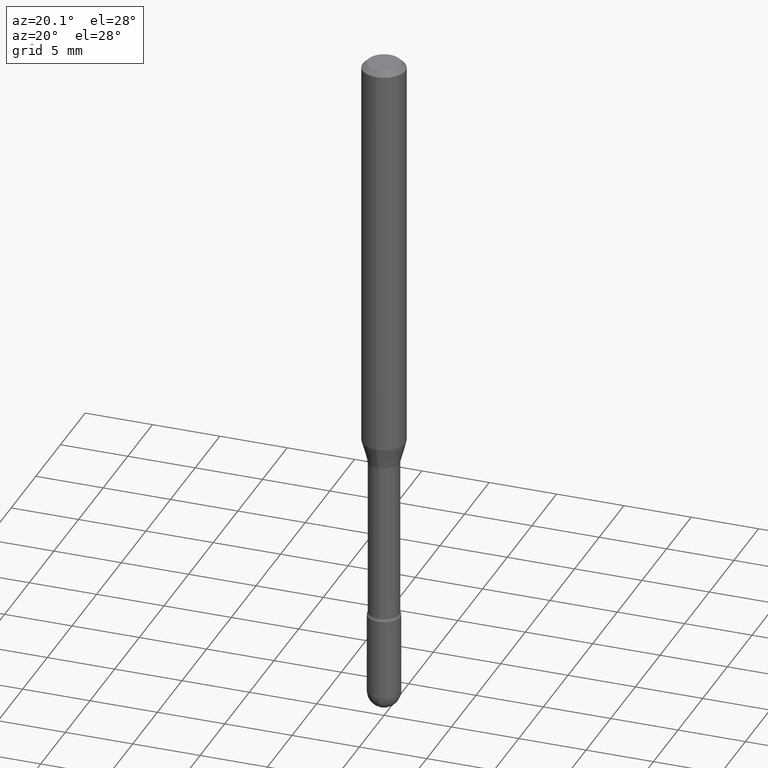
[diagram: clean part render]
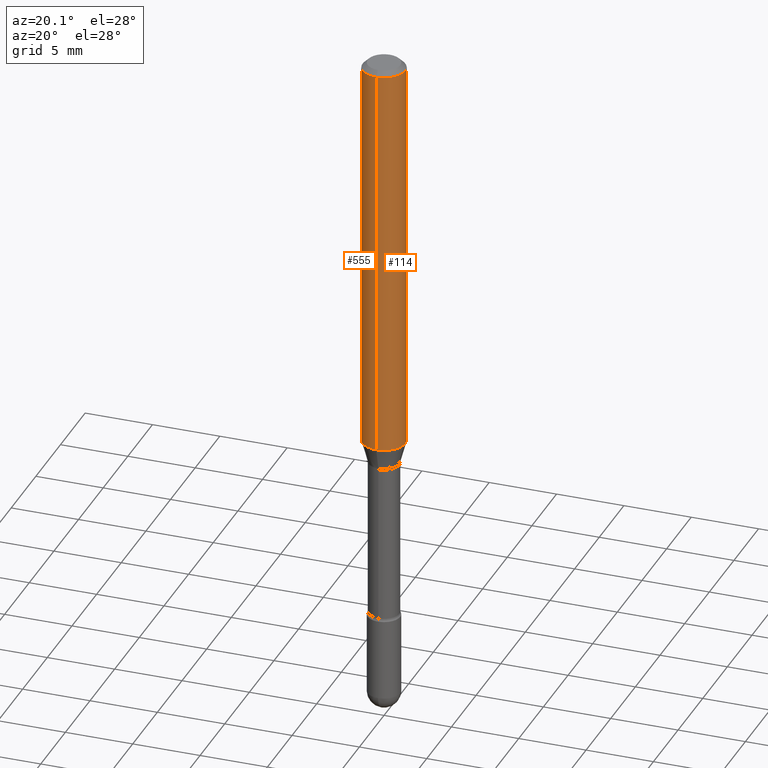
[diagram: same view with one multi-face feature highlighted, each face labeled with its STEP entity id]
A machine part, auxiliary view. The highlighted faces form ONE feature: a constant-radius fillet chain: 2 tangent blend faces with common blend radius 1.5875 mm. The faces share edges in the B-rep.
Their STEP definitions:
[1] entity #114 (Cylinder):
#11 = ORIENTED_EDGE ( 'NONE', *, *, #89, .T. ) ;
#34 = AXIS2_PLACEMENT_3D ( 'NONE', #227, #179, #230 ) ;
#44 = ORIENTED_EDGE ( 'NONE', *, *, #467, .F. ) ;
#45 = CARTESIAN_POINT ( 'NONE',  ( 4.440892098500914096E-16, 0.06249999999999593381, -1.173382893084895962 ) ) ;
#58 = CIRCLE ( 'NONE', #193, 0.06250000000000000000 ) ;
#89 = EDGE_CURVE ( 'NONE', #466, #413, #186, .T. ) ;
#114 = ADVANCED_FACE ( 'NONE', ( #124 ), #335, .T. ) ;
#115 = VECTOR ( 'NONE', #431, 39.37007874015748143 ) ;
#124 = FACE_OUTER_BOUND ( 'NONE', #295, .T. ) ;
#141 = DIRECTION ( 'NONE',  ( -2.445445222880823255E-29, 3.491515111477200891E-15, 1.000000000000000000 ) ) ;
#179 = DIRECTION ( 'NONE',  ( -2.445445222880823255E-29, 3.491515111477200891E-15, 1.000000000000000000 ) ) ;
#181 = DIRECTION ( 'NONE',  ( -6.982962677686265922E-15, -1.000000000000000000, 3.483106191921935554E-15 ) ) ;
#186 = LINE ( 'NONE', #532, #461 ) ;
#193 = AXIS2_PLACEMENT_3D ( 'NONE', #266, #530, #181 ) ;
#208 = CARTESIAN_POINT ( 'NONE',  ( -1.169113584055446105E-44, 1.669184350826100908E-30, 4.780733988912460139E-16 ) ) ;
#217 = CARTESIAN_POINT ( 'NONE',  ( -4.364351673553627281E-16, -0.06250000000000405231, -1.173382893084895295 ) ) ;
#227 = CARTESIAN_POINT ( 'NONE',  ( 2.869443590504537557E-29, -4.096884102754750081E-15, -1.173382893084895739 ) ) ;
#230 = DIRECTION ( 'NONE',  ( -6.982962677686265922E-15, -1.000000000000000000, 4.370956789862821150E-15 ) ) ;
#251 = DIRECTION ( 'NONE',  ( -2.445445222880823255E-29, 3.491515111477200891E-15, 1.000000000000000000 ) ) ;
#266 = CARTESIAN_POINT ( 'NONE',  ( 3.668167834321254886E-31, -5.237272667215830031E-17, -0.01500000000000008271 ) ) ;
#295 = EDGE_LOOP ( 'NONE', ( #411, #11, #44, #386 ) ) ;
#296 = VERTEX_POINT ( 'NONE', #217 ) ;
#299 = AXIS2_PLACEMENT_3D ( 'NONE', #208, #251, #425 ) ;
#307 = CARTESIAN_POINT ( 'NONE',  ( 4.440892098500914096E-16, 0.06249999999999995143, -0.01500000000000030129 ) ) ;
#313 = CIRCLE ( 'NONE', #34, 0.06250000000000000000 ) ;
#321 = EDGE_CURVE ( 'NONE', #296, #456, #423, .T. ) ;
#335 = CYLINDRICAL_SURFACE ( 'NONE', #299, 0.06250000000000000000 ) ;
#386 = ORIENTED_EDGE ( 'NONE', *, *, #321, .F. ) ;
#388 = CARTESIAN_POINT ( 'NONE',  ( -4.364351673553916201E-16, -0.06250000000000000000, 6.962930933585711189E-16 ) ) ;
#394 = EDGE_CURVE ( 'NONE', #296, #466, #313, .T. ) ;
#411 = ORIENTED_EDGE ( 'NONE', *, *, #394, .T. ) ;
#413 = VERTEX_POINT ( 'NONE', #307 ) ;
#423 = LINE ( 'NONE', #388, #115 ) ;
#425 = DIRECTION ( 'NONE',  ( -6.982962677686265922E-15, -1.000000000000000000, 3.491515111477201285E-15 ) ) ;
#431 = DIRECTION ( 'NONE',  ( -2.445445222880823255E-29, 3.491515111477200891E-15, 1.000000000000000000 ) ) ;
#433 = CARTESIAN_POINT ( 'NONE',  ( -4.364351673553912750E-16, -0.06250000000000005551, -0.01499999999999986587 ) ) ;
#456 = VERTEX_POINT ( 'NONE', #433 ) ;
#461 = VECTOR ( 'NONE', #141, 39.37007874015748143 ) ;
#466 = VERTEX_POINT ( 'NONE', #45 ) ;
#467 = EDGE_CURVE ( 'NONE', #456, #413, #58, .T. ) ;
#530 = DIRECTION ( 'NONE',  ( -2.445445222880823255E-29, 3.491515111477200891E-15, 1.000000000000000000 ) ) ;
#532 = CARTESIAN_POINT ( 'NONE',  ( 4.440892098500625669E-16, 0.06250000000000000000, 2.598537044239210075E-16 ) ) ;
[2] entity #555 (Cylinder):
#1 = EDGE_CURVE ( 'NONE', #466, #296, #270, .T. ) ;
#8 = ORIENTED_EDGE ( 'NONE', *, *, #321, .T. ) ;
#45 = CARTESIAN_POINT ( 'NONE',  ( 4.440892098500914096E-16, 0.06249999999999593381, -1.173382893084895962 ) ) ;
#51 = ORIENTED_EDGE ( 'NONE', *, *, #292, .F. ) ;
#66 = CIRCLE ( 'NONE', #545, 0.06250000000000000000 ) ;
#72 = EDGE_LOOP ( 'NONE', ( #493, #533, #8, #51 ) ) ;
#89 = EDGE_CURVE ( 'NONE', #466, #413, #186, .T. ) ;
#97 = CARTESIAN_POINT ( 'NONE',  ( -1.169113584055446105E-44, 1.669184350826100908E-30, 4.780733988912460139E-16 ) ) ;
#115 = VECTOR ( 'NONE', #431, 39.37007874015748143 ) ;
#123 = DIRECTION ( 'NONE',  ( -6.982962677686265922E-15, -1.000000000000000000, 3.483106191921935554E-15 ) ) ;
#141 = DIRECTION ( 'NONE',  ( -2.445445222880823255E-29, 3.491515111477200891E-15, 1.000000000000000000 ) ) ;
#186 = LINE ( 'NONE', #532, #461 ) ;
#217 = CARTESIAN_POINT ( 'NONE',  ( -4.364351673553627281E-16, -0.06250000000000405231, -1.173382893084895295 ) ) ;
#265 = DIRECTION ( 'NONE',  ( -6.982962677686265922E-15, -1.000000000000000000, 4.370956789862821150E-15 ) ) ;
#270 = CIRCLE ( 'NONE', #288, 0.06250000000000000000 ) ;
#288 = AXIS2_PLACEMENT_3D ( 'NONE', #360, #306, #265 ) ;
#289 = AXIS2_PLACEMENT_3D ( 'NONE', #97, #327, #499 ) ;
#292 = EDGE_CURVE ( 'NONE', #413, #456, #66, .T. ) ;
#296 = VERTEX_POINT ( 'NONE', #217 ) ;
#306 = DIRECTION ( 'NONE',  ( -2.445445222880823255E-29, 3.491515111477200891E-15, 1.000000000000000000 ) ) ;
#307 = CARTESIAN_POINT ( 'NONE',  ( 4.440892098500914096E-16, 0.06249999999999995143, -0.01500000000000030129 ) ) ;
#321 = EDGE_CURVE ( 'NONE', #296, #456, #423, .T. ) ;
#327 = DIRECTION ( 'NONE',  ( -2.445445222880823255E-29, 3.491515111477200891E-15, 1.000000000000000000 ) ) ;
#360 = CARTESIAN_POINT ( 'NONE',  ( 2.869443590504537557E-29, -4.096884102754750081E-15, -1.173382893084895739 ) ) ;
#372 = FACE_OUTER_BOUND ( 'NONE', #72, .T. ) ;
#388 = CARTESIAN_POINT ( 'NONE',  ( -4.364351673553916201E-16, -0.06250000000000000000, 6.962930933585711189E-16 ) ) ;
#413 = VERTEX_POINT ( 'NONE', #307 ) ;
#423 = LINE ( 'NONE', #388, #115 ) ;
#431 = DIRECTION ( 'NONE',  ( -2.445445222880823255E-29, 3.491515111477200891E-15, 1.000000000000000000 ) ) ;
#433 = CARTESIAN_POINT ( 'NONE',  ( -4.364351673553912750E-16, -0.06250000000000005551, -0.01499999999999986587 ) ) ;
#456 = VERTEX_POINT ( 'NONE', #433 ) ;
#461 = VECTOR ( 'NONE', #141, 39.37007874015748143 ) ;
#466 = VERTEX_POINT ( 'NONE', #45 ) ;
#493 = ORIENTED_EDGE ( 'NONE', *, *, #89, .F. ) ;
#499 = DIRECTION ( 'NONE',  ( -6.982962677686265922E-15, -1.000000000000000000, 3.491515111477201285E-15 ) ) ;
#532 = CARTESIAN_POINT ( 'NONE',  ( 4.440892098500625669E-16, 0.06250000000000000000, 2.598537044239210075E-16 ) ) ;
#533 = ORIENTED_EDGE ( 'NONE', *, *, #1, .T. ) ;
#540 = CYLINDRICAL_SURFACE ( 'NONE', #289, 0.06250000000000000000 ) ;
#545 = AXIS2_PLACEMENT_3D ( 'NONE', #551, #559, #123 ) ;
#551 = CARTESIAN_POINT ( 'NONE',  ( 3.668167834321254886E-31, -5.237272667215830031E-17, -0.01500000000000008271 ) ) ;
#555 = ADVANCED_FACE ( 'NONE', ( #372 ), #540, .T. ) ;
#559 = DIRECTION ( 'NONE',  ( -2.445445222880823255E-29, 3.491515111477200891E-15, 1.000000000000000000 ) ) ;